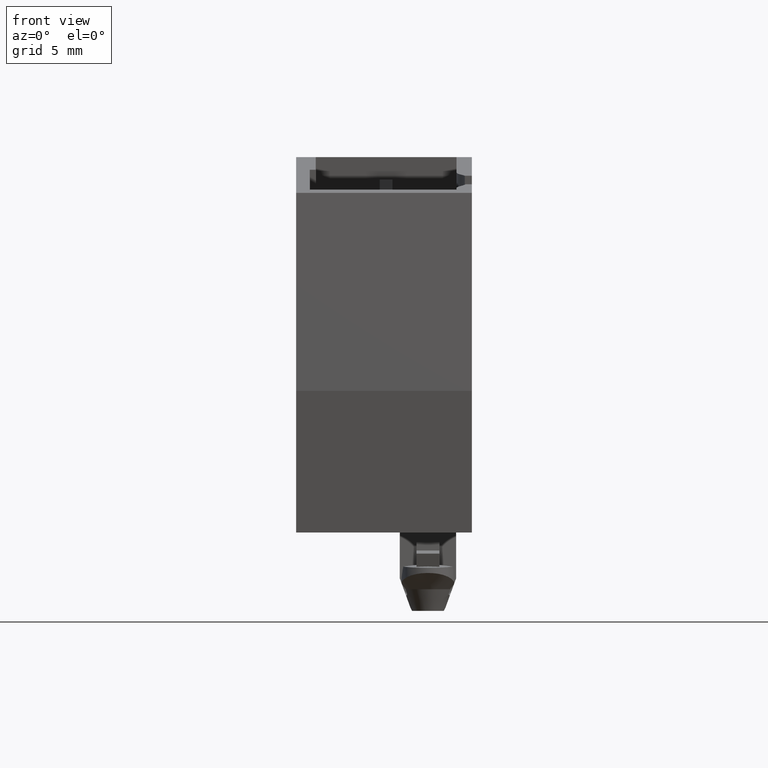
[diagram: clean part render]
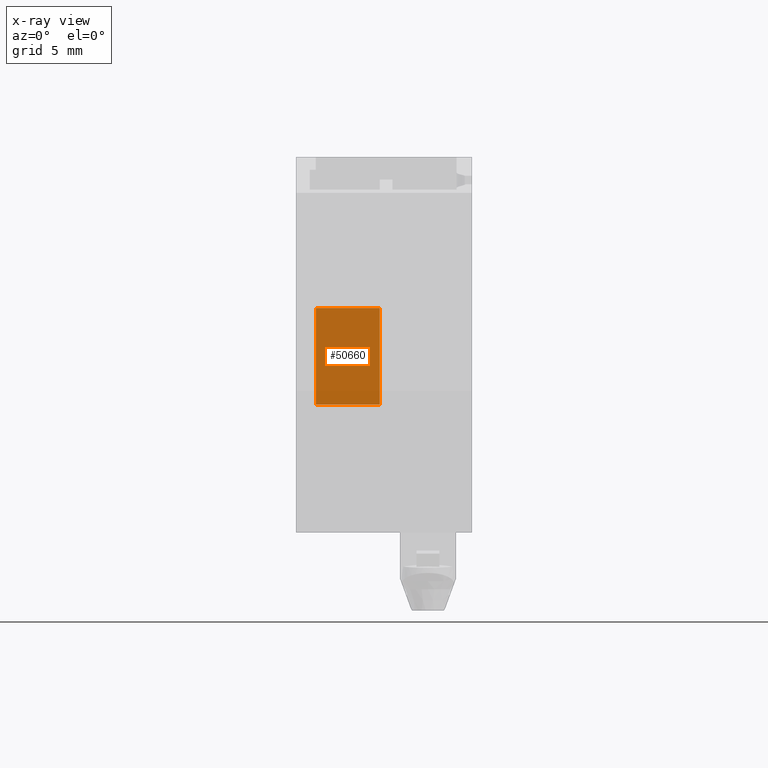
[diagram: x-ray — body ghosted, one internal face saturated and labeled with its STEP entity id]
A machine part, front view, then the same camera in x-ray: the body is ghosted and one INTERNAL B-rep face — a face not visible from any outside direction — is saturated and labeled: STEP entity #50660.
In plain terms, the highlighted planar face has unit normal (0, 0.9848, -0.1736).
Its self-contained STEP definition (entity closure, byte-faithful):
#30120=CARTESIAN_POINT('',(0.570305430005721,108.909166372632,
64.1999999999997));
#30130=VERTEX_POINT('',#30120);
#30160=CARTESIAN_POINT('',(19.3862159655337,117.683169550527,
64.1999999999997));
#30170=DIRECTION('',(0.906307787036306,0.422618261741438,
1.38777878078144E-17));
#30180=VECTOR('',#30170,1.);
#30190=LINE('',#30160,#30180);
#30200=CARTESIAN_POINT('',(5.77596929906986,111.336607300563,
64.1999999999997));
#30210=VERTEX_POINT('',#30200);
#30220=EDGE_CURVE('',#30130,#30210,#30190,.T.);
#31460=CARTESIAN_POINT('',(5.77596929906983,111.336607300563,
60.4499999999999));
#31470=VERTEX_POINT('',#31460);
#31500=CARTESIAN_POINT('',(72.6184129402907,142.505750660324,60.45));
#31510=DIRECTION('',(0.906307787036306,0.422618261741438,
1.73472347597681E-15));
#31520=VECTOR('',#31510,1.);
#31530=LINE('',#31500,#31520);
#31540=CARTESIAN_POINT('',(0.570305430005693,108.909166372632,
60.4499999999999));
#31550=VERTEX_POINT('',#31540);
#31560=EDGE_CURVE('',#31550,#31470,#31530,.T.);
#35350=CARTESIAN_POINT('',(0.570305430005721,108.909166372632,
65.3499999999999));
#35360=DIRECTION('',(4.14455412124675E-15,-8.88802499542116E-15,1.));
#35370=VECTOR('',#35360,1.);
#35380=LINE('',#35350,#35370);
#35730=CARTESIAN_POINT('',(5.77596929906986,111.336607300563,
65.3499999999999));
#35740=DIRECTION('',(4.14455412124675E-15,-8.88802499542116E-15,1.));
#35750=VECTOR('',#35740,1.);
#35760=LINE('',#35730,#35750);
#35920=CARTESIAN_POINT('',(5.77596929906983,111.336607300563,
55.9499999999997));
#35930=DIRECTION('',(0.422618261741438,-0.906307787036306,
-9.80685052313813E-15));
#35940=DIRECTION('',(4.14455412124675E-15,-8.88802499542116E-15,1.));
#35950=AXIS2_PLACEMENT_3D('',#35920,#35930,#35940);
#35960=PLANE('',#35950);
#50400=EDGE_CURVE('',#31550,#30130,#35380,.T.);
#50590=ORIENTED_EDGE('',*,*,#31560,.F.);
#50600=EDGE_CURVE('',#31470,#30210,#35760,.T.);
#50610=ORIENTED_EDGE('',*,*,#50600,.F.);
#50620=ORIENTED_EDGE('',*,*,#30220,.T.);
#50630=ORIENTED_EDGE('',*,*,#50400,.T.);
#50640=EDGE_LOOP('',(#50630,#50620,#50610,#50590));
#50650=FACE_OUTER_BOUND('',#50640,.T.);
#50660=ADVANCED_FACE('',(#50650),#35960,.F.);